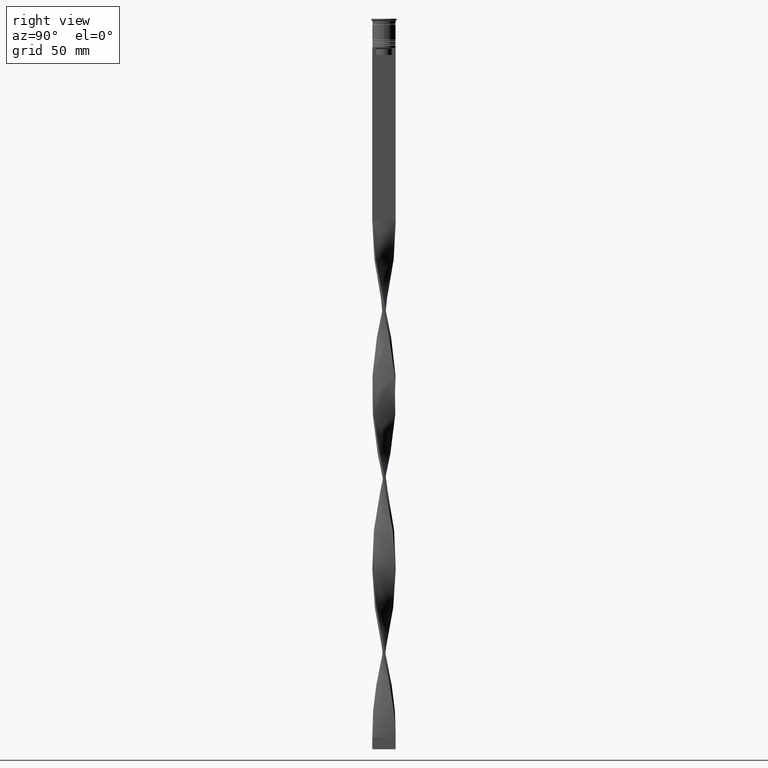
[diagram: clean part render]
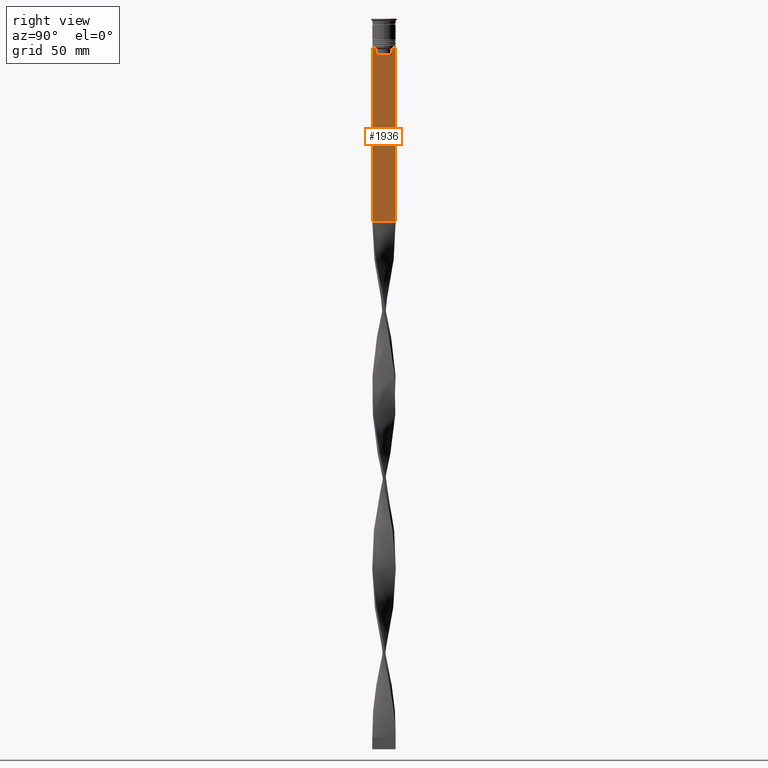
[diagram: same view with one face highlighted and labeled with its STEP entity id]
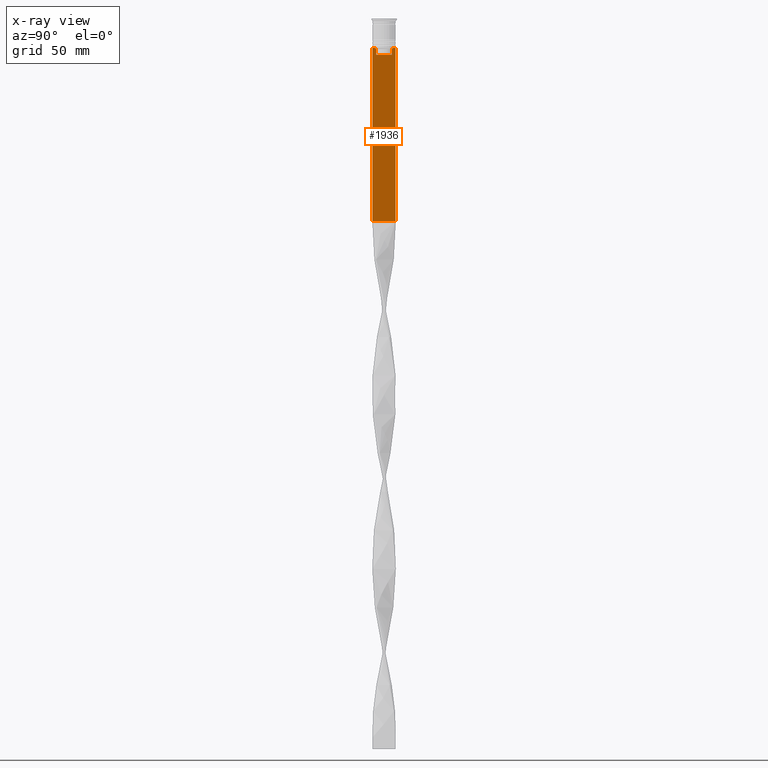
[diagram: x-ray of the same camera — body ghosted, the highlighted face saturated]
A machine part, right view. The second image highlights one B-rep face of the part: STEP entity #1936.
The next image is the same camera in x-ray: the body ghosted, the highlighted face saturated — about 0% of this face is hidden behind the body in this view.
In plain terms, the highlighted planar face has unit normal (-1, 0, 0).
Its self-contained STEP definition (entity closure, byte-faithful):
#18 = VECTOR ( 'NONE', #3554, 1000.000000000000000 ) ;
#61 = ORIENTED_EDGE ( 'NONE', *, *, #1147, .T. ) ;
#119 = CARTESIAN_POINT ( 'NONE',  ( 0.5000000000000000000, -4.999999999999999112, -12.50000000000000000 ) ) ;
#144 = CARTESIAN_POINT ( 'NONE',  ( 0.5000000000000000000, -4.999999999999999112, -86.50000000000000000 ) ) ;
#164 = VECTOR ( 'NONE', #1389, 1000.000000000000000 ) ;
#178 = CARTESIAN_POINT ( 'NONE',  ( 0.5000000000000000000, -4.999999999999999112, -86.50000000000000000 ) ) ;
#232 = VERTEX_POINT ( 'NONE', #1090 ) ;
#270 = CARTESIAN_POINT ( 'NONE',  ( 0.5000000000000000000, -3.699658232838647365, -12.66676999593996555 ) ) ;
#329 = CARTESIAN_POINT ( 'NONE',  ( 0.5000000000000000000, 3.699657965831574913, -12.66677026074361301 ) ) ;
#427 = CARTESIAN_POINT ( 'NONE',  ( 0.5000000000000000000, -3.363034344160045652, -15.50000000000000000 ) ) ;
#433 = EDGE_CURVE ( 'NONE', #812, #3063, #3485, .T. ) ;
#455 = CARTESIAN_POINT ( 'NONE',  ( 0.5000000000000000000, -4.999999999999999112, -12.50000000000000000 ) ) ;
#506 = VECTOR ( 'NONE', #2155, 1000.000000000000000 ) ;
#560 = ORIENTED_EDGE ( 'NONE', *, *, #433, .T. ) ;
#607 = B_SPLINE_CURVE_WITH_KNOTS ( 'NONE', 3,
 ( #2183, #1519, #270, #909 ),
 .UNSPECIFIED., .F., .F.,
 ( 4, 4 ),
 ( 0.01632394437298965648, 0.01703543518243618576 ),
 .UNSPECIFIED. ) ;
#624 = AXIS2_PLACEMENT_3D ( 'NONE', #3506, #3655, #3919 ) ;
#640 = CARTESIAN_POINT ( 'NONE',  ( 0.5000000000000000000, -3.363034344160045208, 0.000000000000000000 ) ) ;
#703 = CARTESIAN_POINT ( 'NONE',  ( 0.5000000000000000000, -4.999999999999999112, -2.450124378879110054 ) ) ;
#783 = DIRECTION ( 'NONE',  ( 0.000000000000000000, 1.000000000000000000, 0.000000000000000000 ) ) ;
#812 = VERTEX_POINT ( 'NONE', #427 ) ;
#817 = CARTESIAN_POINT ( 'NONE',  ( 0.5000000000000000000, 4.874423042781575788, -12.50000000000000000 ) ) ;
#856 = EDGE_CURVE ( 'NONE', #2555, #2241, #3918, .T. ) ;
#876 = EDGE_CURVE ( 'NONE', #2460, #232, #2182, .T. ) ;
#909 = CARTESIAN_POINT ( 'NONE',  ( 0.5000000000000000000, -3.867815921162742754, -12.50000000000000000 ) ) ;
#911 = B_SPLINE_CURVE_WITH_KNOTS ( 'NONE', 3,
 ( #2871, #329, #1590, #1927 ),
 .UNSPECIFIED., .F., .F.,
 ( 4, 4 ),
 ( 0.006644825462451552783, 0.007355321358912435097 ),
 .UNSPECIFIED. ) ;
#974 = DIRECTION ( 'NONE',  ( 0.000000000000000000, 0.000000000000000000, -1.000000000000000000 ) ) ;
#975 = VERTEX_POINT ( 'NONE', #1018 ) ;
#1018 = CARTESIAN_POINT ( 'NONE',  ( 0.5000000000000000000, -4.999999999999999112, -12.50000000000000000 ) ) ;
#1090 = CARTESIAN_POINT ( 'NONE',  ( 0.5000000000000000000, 5.000000000000000888, -86.50000000000000000 ) ) ;
#1115 = ORIENTED_EDGE ( 'NONE', *, *, #3005, .T. ) ;
#1136 = CARTESIAN_POINT ( 'NONE',  ( 0.5000000000000000000, 3.363034344160045208, -13.00000000000000178 ) ) ;
#1147 = EDGE_CURVE ( 'NONE', #1604, #3530, #3511, .T. ) ;
#1153 = VECTOR ( 'NONE', #1765, 1000.000000000000000 ) ;
#1216 = VECTOR ( 'NONE', #974, 1000.000000000000000 ) ;
#1389 = DIRECTION ( 'NONE',  ( 0.000000000000000000, -1.000000000000000000, 0.000000000000000000 ) ) ;
#1432 = VERTEX_POINT ( 'NONE', #1136 ) ;
#1458 = ORIENTED_EDGE ( 'NONE', *, *, #1516, .T. ) ;
#1465 = ORIENTED_EDGE ( 'NONE', *, *, #856, .T. ) ;
#1476 = CARTESIAN_POINT ( 'NONE',  ( 0.5000000000000000000, 3.399999999999998135, -15.50000000000000000 ) ) ;
#1495 = CARTESIAN_POINT ( 'NONE',  ( 0.5000000000000000000, -3.363034344160045208, -13.00000000000000178 ) ) ;
#1499 = CARTESIAN_POINT ( 'NONE',  ( 0.5000000000000000000, 3.363034344160045208, 0.000000000000000000 ) ) ;
#1516 = EDGE_CURVE ( 'NONE', #2989, #812, #2029, .T. ) ;
#1519 = CARTESIAN_POINT ( 'NONE',  ( 0.5000000000000000000, -3.531412985305424801, -12.83345201382502765 ) ) ;
#1590 = CARTESIAN_POINT ( 'NONE',  ( 0.5000000000000000000, 3.531412678228260216, -12.83345231756357840 ) ) ;
#1604 = VERTEX_POINT ( 'NONE', #4041 ) ;
#1677 = EDGE_CURVE ( 'NONE', #1432, #2989, #2440, .T. ) ;
#1709 = ORIENTED_EDGE ( 'NONE', *, *, #2698, .T. ) ;
#1765 = DIRECTION ( 'NONE',  ( 0.000000000000000000, -1.000000000000000000, 0.000000000000000000 ) ) ;
#1824 = ORIENTED_EDGE ( 'NONE', *, *, #1677, .T. ) ;
#1894 = EDGE_CURVE ( 'NONE', #975, #3840, #3548, .T. ) ;
#1906 = CARTESIAN_POINT ( 'NONE',  ( 0.5000000000000000000, 5.000000000000000888, -2.450124378879110054 ) ) ;
#1908 = DIRECTION ( 'NONE',  ( -0.000000000000000000, -0.000000000000000000, 1.000000000000000000 ) ) ;
#1909 = EDGE_CURVE ( 'NONE', #2241, #1432, #911, .T. ) ;
#1910 = FACE_OUTER_BOUND ( 'NONE', #2602, .T. ) ;
#1927 = CARTESIAN_POINT ( 'NONE',  ( 0.5000000000000000000, 3.363034344160045208, -13.00000000000000178 ) ) ;
#1936 = ADVANCED_FACE ( 'NONE', ( #1910 ), #2847, .F. ) ;
#2000 = DIRECTION ( 'NONE',  ( 0.000000000000000000, -1.000000000000000000, 0.000000000000000000 ) ) ;
#2029 = LINE ( 'NONE', #1476, #1153 ) ;
#2033 = LINE ( 'NONE', #455, #506 ) ;
#2125 = ORIENTED_EDGE ( 'NONE', *, *, #3308, .T. ) ;
#2155 = DIRECTION ( 'NONE',  ( 0.000000000000000000, -1.000000000000000000, 0.000000000000000000 ) ) ;
#2182 = LINE ( 'NONE', #1906, #3936 ) ;
#2183 = CARTESIAN_POINT ( 'NONE',  ( 0.5000000000000000000, -3.363034344160045208, -13.00000000000000178 ) ) ;
#2225 = ORIENTED_EDGE ( 'NONE', *, *, #4027, .T. ) ;
#2241 = VERTEX_POINT ( 'NONE', #2824 ) ;
#2355 = ORIENTED_EDGE ( 'NONE', *, *, #1894, .T. ) ;
#2440 = LINE ( 'NONE', #1499, #2801 ) ;
#2460 = VERTEX_POINT ( 'NONE', #2570 ) ;
#2469 = VECTOR ( 'NONE', #2000, 1000.000000000000000 ) ;
#2475 = CARTESIAN_POINT ( 'NONE',  ( 0.5000000000000000000, -4.874423042781575788, -12.50000000000000000 ) ) ;
#2555 = VERTEX_POINT ( 'NONE', #817 ) ;
#2570 = CARTESIAN_POINT ( 'NONE',  ( 0.5000000000000000000, 5.000000000000000888, -12.50000000000000000 ) ) ;
#2602 = EDGE_LOOP ( 'NONE', ( #1465, #3595, #1824, #1458, #560, #1115, #61, #2225, #2355, #2125, #3288, #1709 ) ) ;
#2698 = EDGE_CURVE ( 'NONE', #2460, #2555, #3261, .T. ) ;
#2794 = VECTOR ( 'NONE', #1908, 1000.000000000000000 ) ;
#2801 = VECTOR ( 'NONE', #3701, 1000.000000000000000 ) ;
#2824 = CARTESIAN_POINT ( 'NONE',  ( 0.5000000000000000000, 3.867815921162742754, -12.50000000000000000 ) ) ;
#2847 = PLANE ( 'NONE',  #624 ) ;
#2871 = CARTESIAN_POINT ( 'NONE',  ( 0.5000000000000000000, 3.867815921162742754, -12.50000000000000000 ) ) ;
#2875 = VECTOR ( 'NONE', #783, 1000.000000000000000 ) ;
#2899 = CARTESIAN_POINT ( 'NONE',  ( 0.5000000000000000000, -4.999999999999999112, -12.50000000000000000 ) ) ;
#2989 = VERTEX_POINT ( 'NONE', #3129 ) ;
#3005 = EDGE_CURVE ( 'NONE', #3063, #1604, #607, .T. ) ;
#3063 = VERTEX_POINT ( 'NONE', #1495 ) ;
#3129 = CARTESIAN_POINT ( 'NONE',  ( 0.5000000000000000000, 3.363034344160045652, -15.50000000000000000 ) ) ;
#3261 = LINE ( 'NONE', #119, #164 ) ;
#3288 = ORIENTED_EDGE ( 'NONE', *, *, #876, .F. ) ;
#3308 = EDGE_CURVE ( 'NONE', #3840, #232, #3351, .T. ) ;
#3351 = LINE ( 'NONE', #178, #2875 ) ;
#3485 = LINE ( 'NONE', #640, #2794 ) ;
#3506 = CARTESIAN_POINT ( 'NONE',  ( 0.5000000000000000000, -4.999999999999999112, -2.450124378879110054 ) ) ;
#3511 = LINE ( 'NONE', #2899, #18 ) ;
#3530 = VERTEX_POINT ( 'NONE', #2475 ) ;
#3548 = LINE ( 'NONE', #703, #1216 ) ;
#3554 = DIRECTION ( 'NONE',  ( 0.000000000000000000, -1.000000000000000000, 0.000000000000000000 ) ) ;
#3595 = ORIENTED_EDGE ( 'NONE', *, *, #1909, .T. ) ;
#3609 = CARTESIAN_POINT ( 'NONE',  ( 0.5000000000000000000, -4.999999999999999112, -12.50000000000000000 ) ) ;
#3655 = DIRECTION ( 'NONE',  ( -1.000000000000000000, 0.000000000000000000, 0.000000000000000000 ) ) ;
#3701 = DIRECTION ( 'NONE',  ( 0.000000000000000000, 0.000000000000000000, -1.000000000000000000 ) ) ;
#3840 = VERTEX_POINT ( 'NONE', #144 ) ;
#3918 = LINE ( 'NONE', #3609, #2469 ) ;
#3919 = DIRECTION ( 'NONE',  ( 0.000000000000000000, 0.000000000000000000, 1.000000000000000000 ) ) ;
#3936 = VECTOR ( 'NONE', #4119, 1000.000000000000000 ) ;
#4027 = EDGE_CURVE ( 'NONE', #3530, #975, #2033, .T. ) ;
#4041 = CARTESIAN_POINT ( 'NONE',  ( 0.5000000000000000000, -3.867815921162742754, -12.50000000000000000 ) ) ;
#4119 = DIRECTION ( 'NONE',  ( 0.000000000000000000, 0.000000000000000000, -1.000000000000000000 ) ) ;